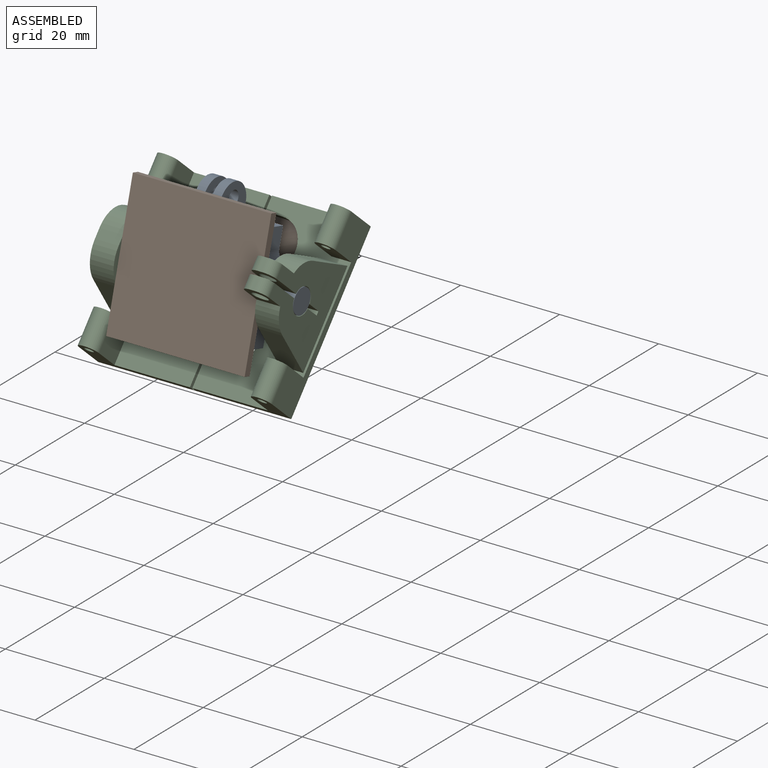
[diagram: assembled view]
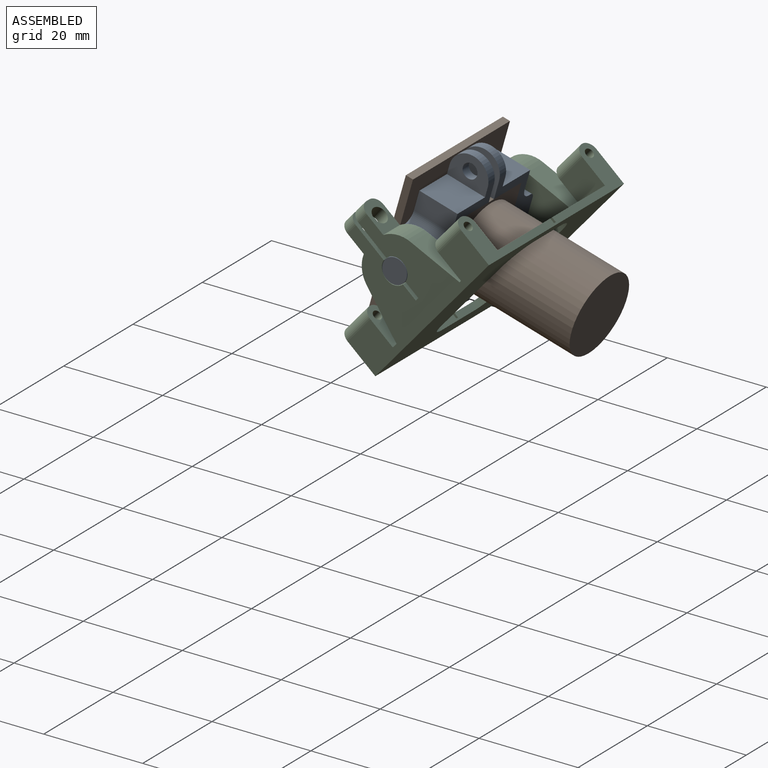
[diagram: assembled view, second angle]
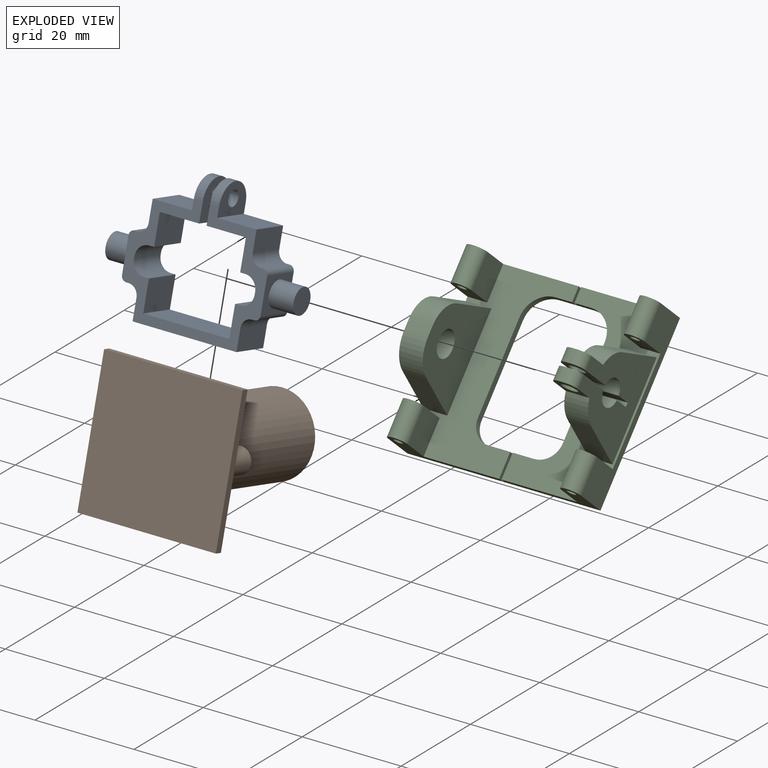
[diagram: exploded view]
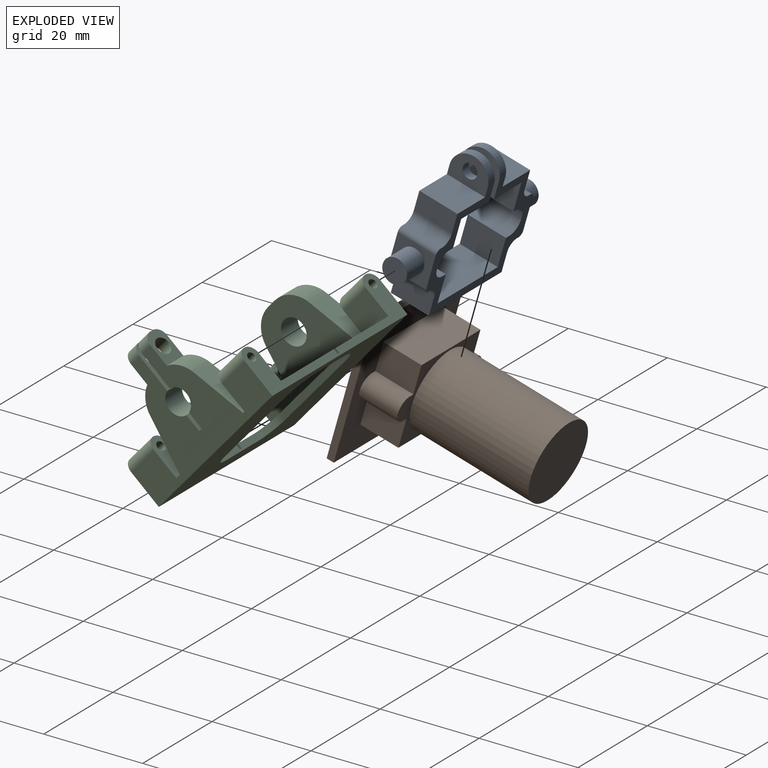
[diagram: exploded view, second angle]
ASSEMBLY  parts=3 mates=2
PART A: 52 faces, bbox 38x8x27 mm
  f0: plane 8x6.85mm, normal (-1,0,0), area 35.2mm2, adj f34,f35,f36,f40,f41
  f1: plane 8x0.5mm, normal (0,0,-1), area 4mm2, adj f34,f35,f41,f47
  f2: plane 8x4.08mm, normal (-1,0,0), area 32.6mm2, adj f3,f34,f35,f47
  f3: plane 21x8mm, normal (0,0,-1), area 168mm2, adj f2,f4,f34,f35
  f4: plane 8x4.08mm, normal (1,0,0), area 32.6mm2, adj f3,f34,f35,f48
  f5: plane 8x0.5mm, normal (0,0,-1), area 4mm2, adj f34,f35,f42,f48
  f6: plane 8x6.85mm, normal (1,0,0), area 35.2mm2, adj f34,f35,f38,f42,f43
  f7: plane 8x0.5mm, normal (0,0,1), area 4mm2, adj f34,f35,f43,f49
  f8: plane 8x4.08mm, normal (1,0,0), area 32.6mm2, adj f9,f34,f35,f49
  f9: plane 8x7.95mm, normal (0,0,1), area 63.6mm2, adj f8,f10,f34,f35
  f10: plane 8x6mm, normal (1,0,0), area 34.1mm2, adj f9,f34,f35,f45,f50
  f11: plane 8x7.8mm, normal (-1,0,0), area 48.5mm2, adj f12,f34,f35,f45,f50
  f12: plane 8x7.95mm, normal (0,0,-1), area 63.6mm2, adj f11,f13,f34,f35
  f13: plane 8x6mm, normal (-1,0,0), area 48mm2, adj f12,f14,f34,f35
  f14: plane 8x1mm, normal (0,0,-1), area 8mm2, adj f13,f15,f34,f35
  f15: cylinder r=2.5mm len=8mm, axis (0,1,0), area 31.4mm2, adj f14,f16,f34,f35
  f16: plane 8x0.4mm, normal (-1,0,0), area 3.2mm2, adj f15,f17,f34,f35
  f17: cylinder r=2.5mm len=8mm, axis (0,1,0), area 31.4mm2, adj f16,f18,f34,f35
  f18: plane 8x1mm, normal (0,0,1), area 8mm2, adj f17,f19,f34,f35
  f19: plane 8x6mm, normal (-1,0,0), area 48mm2, adj f18,f20,f34,f35
  f20: plane 17.4x8mm, normal (0,0,1), area 139.2mm2, adj f19,f21,f34,f35
  f21: plane 8x6mm, normal (1,0,0), area 48mm2, adj f20,f22,f34,f35
  f22: plane 8x1mm, normal (0,0,1), area 8mm2, adj f21,f23,f34,f35
  f23: cylinder r=2.5mm len=8mm, axis (0,1,0), area 31.4mm2, adj f22,f24,f34,f35
  f24: plane 8x0.4mm, normal (1,0,0), area 3.2mm2, adj f23,f25,f34,f35
  f25: cylinder r=2.5mm len=8mm, axis (0,1,0), area 31.4mm2, adj f24,f26,f34,f35
  f26: plane 8x1mm, normal (0,0,-1), area 8mm2, adj f25,f27,f34,f35
  f27: plane 8x6mm, normal (1,0,0), area 48mm2, adj f26,f28,f34,f35
  f28: plane 8x7.95mm, normal (0,0,-1), area 63.6mm2, adj f27,f29,f34,f35
  f29: plane 8x7.8mm, normal (1,0,0), area 48.5mm2, adj f28,f34,f35,f44,f51
  f30: plane 8x6mm, normal (-1,0,0), area 34.1mm2, adj f31,f34,f35,f44,f51
  f31: plane 8x7.95mm, normal (0,0,1), area 63.6mm2, adj f30,f32,f34,f35
  f32: plane 8x4.08mm, normal (-1,0,0), area 32.6mm2, adj f31,f34,f35,f46
  f33: plane 8x0.5mm, normal (0,0,1), area 4mm2, adj f34,f35,f40,f46
  f34: plane 28x23mm, normal (0,-1,0), area 174.8mm2, adj f0,f1,f2,f3,f4,f5,f6,f7
  f35: plane 28x23mm, normal (0,1,0), area 174.8mm2, adj f0,f1,f2,f3,f4,f5,f6,f7
  f36: cylinder r=2.5mm len=5mm, axis (1,0,0), area 78.5mm2, adj f0,f37
  f37: plane 5x5mm, normal (-1,0,0), area 19.6mm2, adj f36
  f38: cylinder r=2.5mm len=5mm, axis (-1,0,0), area 78.5mm2, adj f6,f39
  f39: plane 5x5mm, normal (1,0,0), area 19.6mm2, adj f38
  f40: cylinder r=1mm len=8mm, axis (0,1,0), area 12.6mm2, adj f0,f33,f34,f35
  f41: cylinder r=1mm len=8mm, axis (0,-1,0), area 12.6mm2, adj f0,f1,f34,f35
  f42: cylinder r=1mm len=8mm, axis (0,1,0), area 12.6mm2, adj f5,f6,f34,f35
  f43: cylinder r=1mm len=8mm, axis (0,-1,0), area 12.6mm2, adj f6,f7,f34,f35
  f44: cylinder r=1.5mm len=3mm, axis (1,0,0), area 17mm2, adj f29,f30
  f45: cylinder r=1.5mm len=3mm, axis (1,0,0), area 17mm2, adj f10,f11
  f46: cylinder r=2mm len=8mm, axis (0,1,0), area 25.1mm2, adj f32,f33,f34,f35
  f47: cylinder r=2mm len=8mm, axis (0,1,0), area 25.1mm2, adj f1,f2,f34,f35
  f48: cylinder r=2mm len=8mm, axis (0,-1,0), area 25.1mm2, adj f4,f5,f34,f35
  f49: cylinder r=2mm len=8mm, axis (0,1,0), area 25.1mm2, adj f7,f8,f34,f35
  f50: cylinder r=4mm len=8mm, axis (1,0,0), area 22.6mm2, adj f10,f11,f34,f35
  f51: cylinder r=4mm len=8mm, axis (1,0,0), area 22.6mm2, adj f29,f30,f34,f35
PART B: 21 faces, bbox 28x34.5x28 mm
  f0: plane 28x1.5mm, normal (1,0,0), area 42mm2, adj f1,f3,f4,f5
  f1: plane 28x1.5mm, normal (0,0,1), area 42mm2, adj f0,f2,f4,f5
  f2: plane 28x1.5mm, normal (-1,0,0), area 42mm2, adj f1,f3,f4,f5
  f3: plane 28x1.5mm, normal (0,0,-1), area 42mm2, adj f0,f2,f4,f5
  f4: plane 28x28mm, normal (0,-1,0), area 465.4mm2, adj f0,f1,f2,f3,f6,f7,f8,f9
  f5: plane 28x28mm, normal (0,1,0), area 784mm2, adj f0,f1,f2,f3
  f6: plane 8x6mm, normal (-1,0,0), area 48mm2, adj f4,f7,f15,f16
  f7: plane 8x1mm, normal (0,0,1), area 8mm2, adj f4,f6,f16,f19
  f8: plane 8x1mm, normal (0,0,-1), area 8mm2, adj f4,f9,f16,f19
  f9: plane 8x6mm, normal (-1,0,0), area 48mm2, adj f4,f8,f10,f16
  f10: plane 17x8mm, normal (0,0,-1), area 136mm2, adj f4,f9,f11,f16
  f11: plane 8x6mm, normal (1,0,0), area 48mm2, adj f4,f10,f12,f16
  f12: plane 8x1mm, normal (0,0,-1), area 8mm2, adj f4,f11,f16,f20
  f13: plane 8x1mm, normal (0,0,1), area 8mm2, adj f4,f14,f16,f20
  f14: plane 8x6mm, normal (1,0,0), area 48mm2, adj f4,f13,f15,f16
  f15: plane 17x8mm, normal (0,0,1), area 136mm2, adj f4,f6,f14,f16
  f16: plane 24x17mm, normal (0,-1,0), area 117.6mm2, adj f6,f7,f8,f9,f10,f11,f12,f13
  f17: cylinder r=8mm len=25mm, axis (0,1,0), area 1256.6mm2, adj f16,f18
  f18: plane 16x16mm, normal (0,-1,0), area 201.1mm2, adj f17
  f19: cylinder r=2.5mm len=8mm, axis (0,-1,0), area 62.8mm2, adj f4,f7,f8,f16
  f20: cylinder r=2.5mm len=8mm, axis (0,1,0), area 62.8mm2, adj f4,f12,f13,f16
PART C: 68 faces, bbox 39x22.4x35 mm
  f0: cylinder r=6mm len=4.8mm, axis (1,0,0), area 28.4mm2, adj f6,f9,f45,f58
  f1: cylinder r=2.6mm len=5.14mm, axis (1,0,0), area 35.4mm2, adj f6,f9,f54,f57
  f2: plane 35x19.25mm, normal (0,-1,0), area 306mm2, adj f3,f4,f5,f6,f9,f11,f12,f15
  f3: plane 39x9.4mm, normal (0,0,-1), area 109.6mm2, adj f2,f10,f18,f19,f20,f21,f22,f23
  f4: plane 9.2x1.4mm, normal (0,0,1), area 12.4mm2, adj f2,f10,f20,f32,f33,f50,f51,f52
  f5: plane 7.2x1.4mm, normal (0,0,-1), area 9.6mm2, adj f2,f10,f20,f35,f36,f47,f48,f49
  f6: plane 19.46x19mm, normal (1,0,0), area 215.9mm2, adj f0,f1,f2,f37,f40,f43,f45,f53
  f7: plane 19.46x15mm, normal (-1,0,0), area 200.1mm2, adj f10,f38,f39,f41,f42,f44,f46
  f8: plane 19.46x15mm, normal (1,0,0), area 200.1mm2, adj f10,f38,f39,f41,f42,f44,f46
  f9: plane 19.46x19mm, normal (-1,0,0), area 215.9mm2, adj f0,f1,f2,f37,f40,f43,f45,f53
  f10: plane 35x19.25mm, normal (0,-1,0), area 306mm2, adj f3,f4,f5,f7,f8,f11,f13,f14
  f11: plane 39x9.4mm, normal (0,0,1), area 109.6mm2, adj f2,f10,f16,f17,f18,f19,f20,f27
  f12: plane 8x4mm, normal (0,0,-1), area 27.7mm2, adj f2,f16,f19,f29,f30
  f13: plane 8x4mm, normal (0,0,-1), area 27.7mm2, adj f10,f17,f18,f27,f28
  f14: plane 8x4mm, normal (0,0,1), area 27.7mm2, adj f10,f18,f21,f25,f26
  f15: plane 8x4mm, normal (0,0,1), area 27.7mm2, adj f2,f19,f22,f23,f24
  f16: plane 7x6mm, normal (-1,0,0), area 42mm2, adj f2,f11,f12,f30
  f17: plane 7x6mm, normal (1,0,0), area 42mm2, adj f10,f11,f13,f27
  f18: plane 35x7.4mm, normal (-1,0,0), area 133mm2, adj f3,f10,f11,f13,f14,f20,f25,f27
  f19: plane 35x7.4mm, normal (1,0,0), area 133mm2, adj f2,f3,f11,f12,f15,f20,f24,f30
  f20: plane 39x35mm, normal (0,1,0), area 914.8mm2, adj f3,f4,f5,f11,f18,f19,f31,f32
  f21: plane 7x6mm, normal (1,0,0), area 42mm2, adj f3,f10,f14,f25
  f22: plane 7x6mm, normal (-1,0,0), area 42mm2, adj f2,f3,f15,f24
  f23: cylinder r=0.9mm len=7mm, axis (0,0,1), area 39.6mm2, adj f3,f15
  f24: cylinder r=2mm len=7mm, axis (0,0,1), area 44mm2, adj f3,f15,f19,f22
  f25: cylinder r=2mm len=7mm, axis (0,0,1), area 44mm2, adj f3,f14,f18,f21
  f26: cylinder r=0.9mm len=7mm, axis (0,0,1), area 39.6mm2, adj f3,f14
  f27: cylinder r=2mm len=7mm, axis (0,0,1), area 44mm2, adj f11,f13,f17,f18
  f28: cylinder r=0.9mm len=7mm, axis (0,0,1), area 39.6mm2, adj f11,f13
  f29: cylinder r=0.9mm len=7mm, axis (0,0,1), area 39.6mm2, adj f11,f12
  f30: cylinder r=2mm len=7mm, axis (0,0,1), area 44mm2, adj f11,f12,f16,f19
  f31: plane 18.2x1.4mm, normal (1,0,0), area 25.5mm2, adj f10,f20,f32,f36
  f32: cylinder r=4mm len=4mm, axis (0,1,0), area 8.8mm2, adj f4,f10,f20,f31
  f33: cylinder r=4mm len=4mm, axis (0,1,0), area 8.8mm2, adj f2,f4,f20,f34
  f34: plane 18.2x1.4mm, normal (-1,0,0), area 25.5mm2, adj f2,f20,f33,f35
  f35: cylinder r=5mm len=5mm, axis (0,1,0), area 11mm2, adj f2,f5,f20,f34
  f36: cylinder r=5mm len=5mm, axis (0,1,0), area 11mm2, adj f5,f10,f20,f31
  f37: cylinder r=2.6mm len=5.14mm, axis (1,0,0), area 35.4mm2, adj f6,f9,f55,f56
  f38: cylinder r=2.6mm len=5.2mm, axis (1,0,0), area 78.4mm2, adj f7,f8
  f39: plane 4.8x2mm, normal (0,-1,0), area 9.6mm2, adj f7,f8,f41,f42
  f40: cylinder r=6mm len=4.8mm, axis (-1,0,0), area 28.4mm2, adj f6,f9,f43,f61
  f41: cylinder r=6mm len=5.82mm, axis (1,0,0), area 38.1mm2, adj f7,f8,f39,f46
  f42: cylinder r=6mm len=5.82mm, axis (-1,0,0), area 38.1mm2, adj f7,f8,f39,f44
  f43: plane 10.46x4.8mm, normal (0,-0.27,-0.96), area 52.1mm2, adj f2,f6,f9,f40
  f44: plane 10.46x4.8mm, normal (0,-0.27,-0.96), area 52.1mm2, adj f7,f8,f10,f42
  f45: plane 10.46x4.8mm, normal (0,-0.27,0.96), area 52.1mm2, adj f0,f2,f6,f9
  f46: plane 10.46x4.8mm, normal (0,-0.27,0.96), area 52.1mm2, adj f7,f8,f10,f41
  f47: plane 2.9x0.5mm, normal (0,-1,0), area 1.5mm2, adj f5,f11,f48,f49
  f48: plane 2.9x1mm, normal (1,0,0), area 2.9mm2, adj f5,f10,f11,f47
  f49: plane 2.9x1mm, normal (-1,0,0), area 2.9mm2, adj f2,f5,f11,f47
  f50: plane 4.9x1mm, normal (-1,0,0), area 4.9mm2, adj f2,f3,f4,f52
  f51: plane 4.9x1mm, normal (1,0,0), area 4.9mm2, adj f3,f4,f10,f52
  f52: plane 4.9x0.5mm, normal (0,-1,0), area 2.5mm2, adj f3,f4,f50,f51
  f53: plane 4.8x0.8mm, normal (0,-1,0), area 3.8mm2, adj f6,f9,f54,f55
  f54: plane 4.8x3.43mm, normal (0,0,-1), area 16.5mm2, adj f1,f6,f9,f53
  f55: plane 4.8x3.43mm, normal (0,0,1), area 16.5mm2, adj f6,f9,f37,f53
  f56: plane 9.43x4.8mm, normal (0,0,1), area 35.5mm2, adj f6,f9,f37,f60,f62,f64,f65
  f57: plane 9.43x4.8mm, normal (0,0,-1), area 35.5mm2, adj f1,f6,f9,f59,f63,f66,f67
  f58: plane 6.34x4.8mm, normal (0,0,1), area 20.7mm2, adj f0,f6,f9,f59,f63,f66,f67
  f59: plane 2.6x0.8mm, normal (0,-1,0), area 2.1mm2, adj f57,f58,f66,f67
  f60: plane 2.6x0.8mm, normal (0,-1,0), area 2.1mm2, adj f56,f61,f64,f65
  f61: plane 6.34x4.8mm, normal (0,0,-1), area 20.7mm2, adj f6,f9,f40,f60,f62,f64,f65
  f62: cylinder r=1.6mm len=3.2mm, axis (0,0,1), area 26.1mm2, adj f56,f61
  f63: cylinder r=1.6mm len=3.2mm, axis (0,0,1), area 26.1mm2, adj f57,f58
  f64: cylinder r=2mm len=2.6mm, axis (0,0,-1), area 8.2mm2, adj f6,f56,f60,f61
  f65: cylinder r=2mm len=2.6mm, axis (0,0,1), area 8.2mm2, adj f9,f56,f60,f61
  f66: cylinder r=2mm len=2.6mm, axis (0,0,-1), area 8.2mm2, adj f6,f57,f58,f59
  f67: cylinder r=2mm len=2.6mm, axis (0,0,1), area 8.2mm2, adj f9,f57,f58,f59
PLACE A rot(axis=(-1,0,0),16deg) t=(-0.82,-36.51,-7.62)mm
PLACE B rot(axis=(0,0.14,0.99),180deg) t=(-1.02,-45.59,-4.81)mm
PLACE C rot(axis=(-1,0,0),41deg) t=(-0.92,-32.5,-13.34)mm
MATE revolute A.f38 <-> C.f1  axis (1,0,0) through (18.18,-40.35,-6.52)mm
MATE fastened B.f15 <-> A.f28  axis (0,0.28,0.96) through (-9.52,-34.11,0.74)mm
